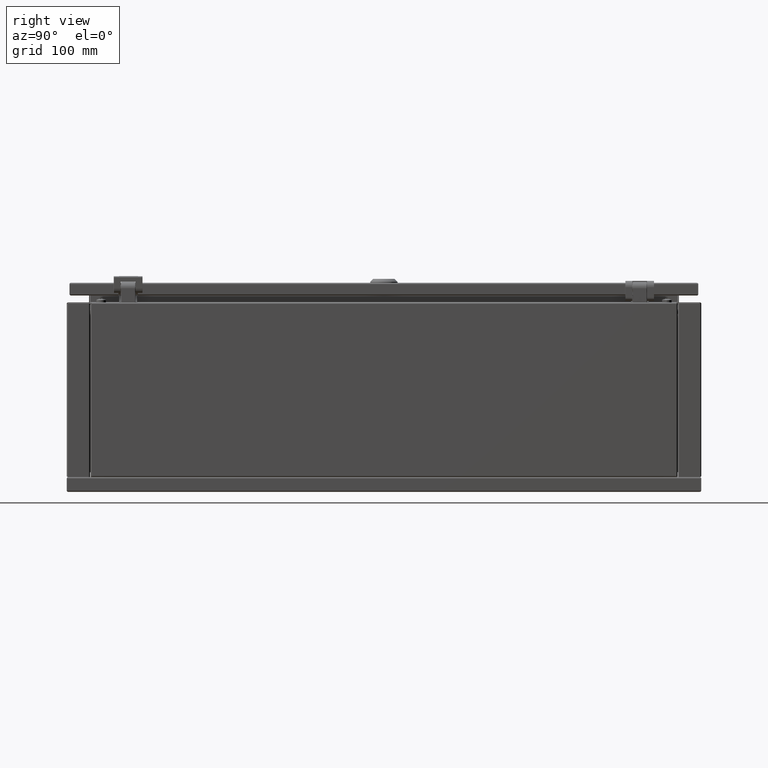
[diagram: clean part render]
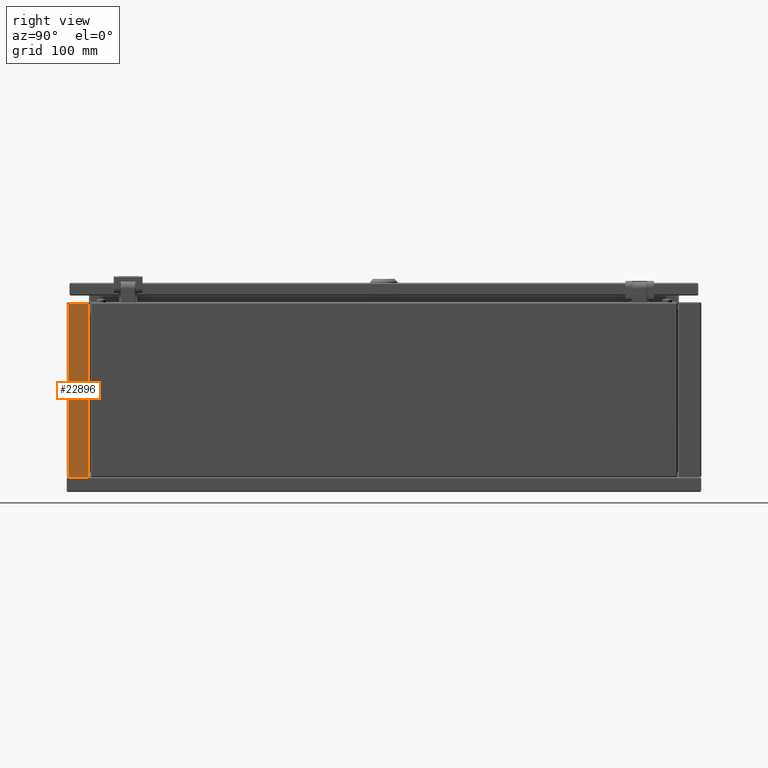
[diagram: same view with one face highlighted and labeled with its STEP entity id]
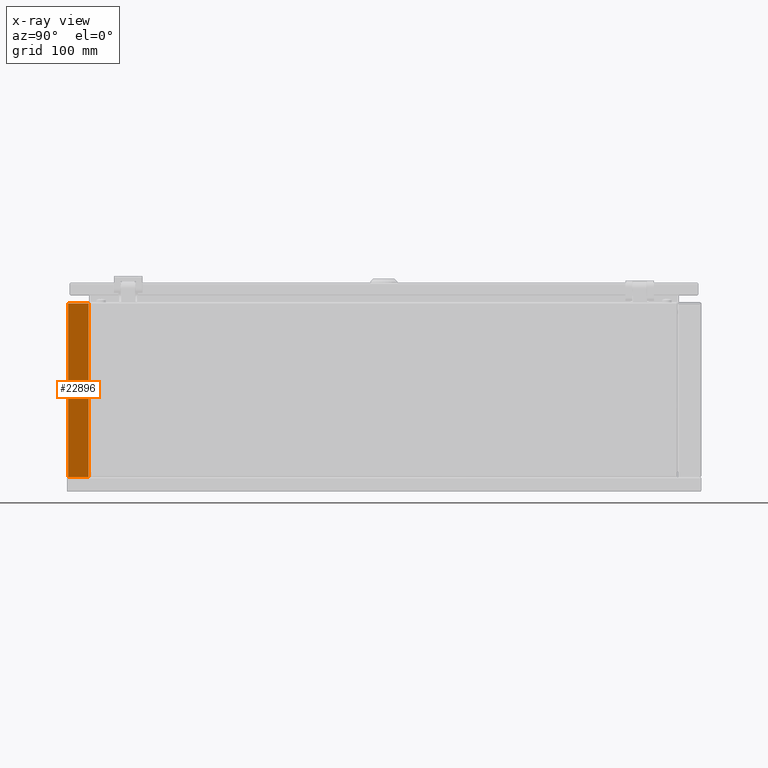
[diagram: x-ray of the same camera — body ghosted, the highlighted face saturated]
A machine part, right view. The second image highlights one B-rep face of the part: STEP entity #22896.
The next image is the same camera in x-ray: the body ghosted, the highlighted face saturated — about 0% of this face is hidden behind the body in this view.
In plain terms, the highlighted planar face has unit normal (-1, 0, -0).
Its self-contained STEP definition (entity closure, byte-faithful):
#2380 = DIRECTION ( 'NONE',  ( -1.000000000000000000, 4.310270819504185500E-015, -4.023422693701270200E-025 ) ) ;
#2492 = ORIENTED_EDGE ( 'NONE', *, *, #46635, .F. ) ;
#6919 = DIRECTION ( 'NONE',  ( 4.761837324575670700E-015, 1.000000000000000000, 6.811850489649800500E-015 ) ) ;
#9514 = LINE ( 'NONE', #10049, #24221 ) ;
#10005 = EDGE_LOOP ( 'NONE', ( #43599, #23099, #2492, #43718 ) ) ;
#10049 = CARTESIAN_POINT ( 'NONE',  ( 150.0000000000000000, -323.5000000000000000, 191.5000000000000000 ) ) ;
#10328 = DIRECTION ( 'NONE',  ( -4.023572721128125300E-025, -3.491481336412970400E-015, 1.000000000000000000 ) ) ;
#13415 = CARTESIAN_POINT ( 'NONE',  ( 150.0000000000000000, -302.5999999999999700, 191.8999999999999800 ) ) ;
#14897 = EDGE_CURVE ( 'NONE', #78147, #76766, #69511, .T. ) ;
#17191 = CARTESIAN_POINT ( 'NONE',  ( 150.0000000000000000, -302.5999999999999700, 13.99999999999970000 ) ) ;
#18922 = AXIS2_PLACEMENT_3D ( 'NONE', #64125, #2380, #77814 ) ;
#19183 = CARTESIAN_POINT ( 'NONE',  ( 150.0000000000000000, -302.5999999999999700, 13.99999999999970000 ) ) ;
#20311 = CARTESIAN_POINT ( 'NONE',  ( 150.0000000000000000, -323.5000000000000000, 191.8999999999999800 ) ) ;
#20892 = LINE ( 'NONE', #75188, #44482 ) ;
#22896 = ADVANCED_FACE ( 'NONE', ( #49263 ), #57821, .F. ) ;
#23099 = ORIENTED_EDGE ( 'NONE', *, *, #80990, .F. ) ;
#24221 = VECTOR ( 'NONE', #10328, 1000.000000000000000 ) ;
#25546 = DIRECTION ( 'NONE',  ( -4.023572721128125300E-025, -3.491481336412970400E-015, 1.000000000000000000 ) ) ;
#27382 = VECTOR ( 'NONE', #25546, 1000.000000000000000 ) ;
#32496 = LINE ( 'NONE', #70970, #62949 ) ;
#39798 = CARTESIAN_POINT ( 'NONE',  ( 150.0000000000000000, -323.5000000000000000, 13.99999999999968000 ) ) ;
#43599 = ORIENTED_EDGE ( 'NONE', *, *, #14897, .T. ) ;
#43718 = ORIENTED_EDGE ( 'NONE', *, *, #70398, .T. ) ;
#44482 = VECTOR ( 'NONE', #6919, 1000.000000000000000 ) ;
#46635 = EDGE_CURVE ( 'NONE', #77918, #69863, #9514, .T. ) ;
#49263 = FACE_OUTER_BOUND ( 'NONE', #10005, .T. ) ;
#57821 = PLANE ( 'NONE',  #18922 ) ;
#62949 = VECTOR ( 'NONE', #64695, 1000.000000000000000 ) ;
#64125 = CARTESIAN_POINT ( 'NONE',  ( 150.0000000000000000, -324.0000000000000000, 15.49999999999970200 ) ) ;
#64695 = DIRECTION ( 'NONE',  ( 4.758702732461060000E-015, 1.000000000000000000, 2.590653507537594600E-017 ) ) ;
#69511 = LINE ( 'NONE', #19183, #27382 ) ;
#69863 = VERTEX_POINT ( 'NONE', #20311 ) ;
#70398 = EDGE_CURVE ( 'NONE', #77918, #78147, #32496, .T. ) ;
#70970 = CARTESIAN_POINT ( 'NONE',  ( 150.0000000000000000, -323.5000000000000000, 13.99999999999970000 ) ) ;
#75188 = CARTESIAN_POINT ( 'NONE',  ( 150.0000000000000000, -323.5000000000000000, 191.8999999999999800 ) ) ;
#76766 = VERTEX_POINT ( 'NONE', #13415 ) ;
#77814 = DIRECTION ( 'NONE',  ( -4.310270819504185500E-015, -1.000000000000000000, -3.491481336412970400E-015 ) ) ;
#77918 = VERTEX_POINT ( 'NONE', #39798 ) ;
#78147 = VERTEX_POINT ( 'NONE', #17191 ) ;
#80990 = EDGE_CURVE ( 'NONE', #69863, #76766, #20892, .T. ) ;